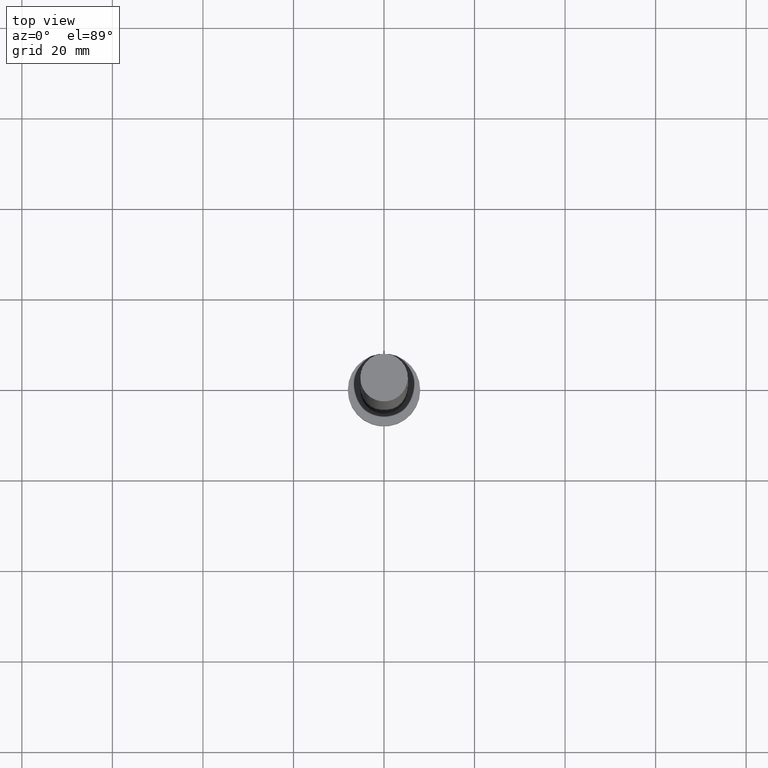
[diagram: clean part render]
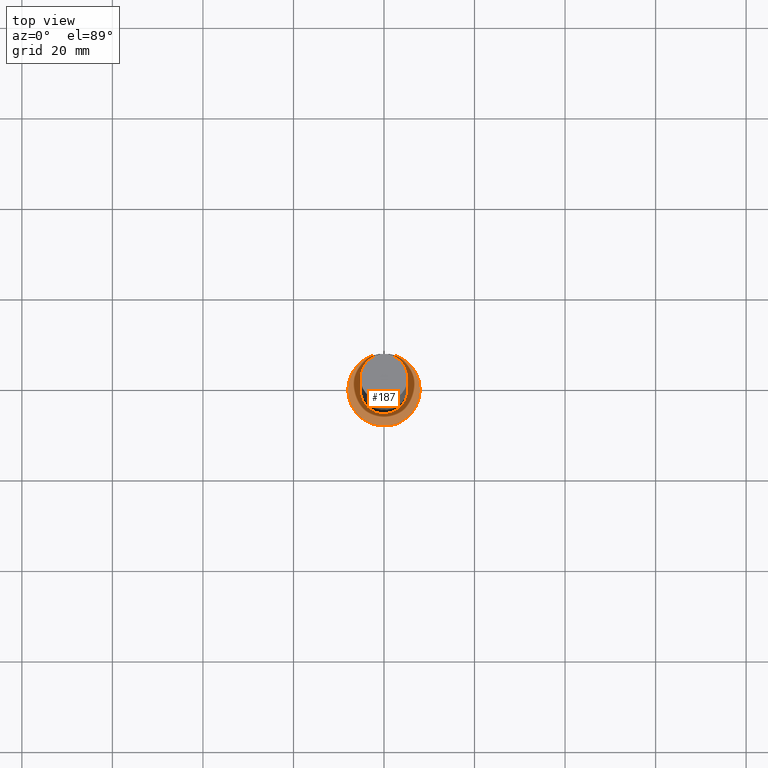
[diagram: same view with one face highlighted and labeled with its STEP entity id]
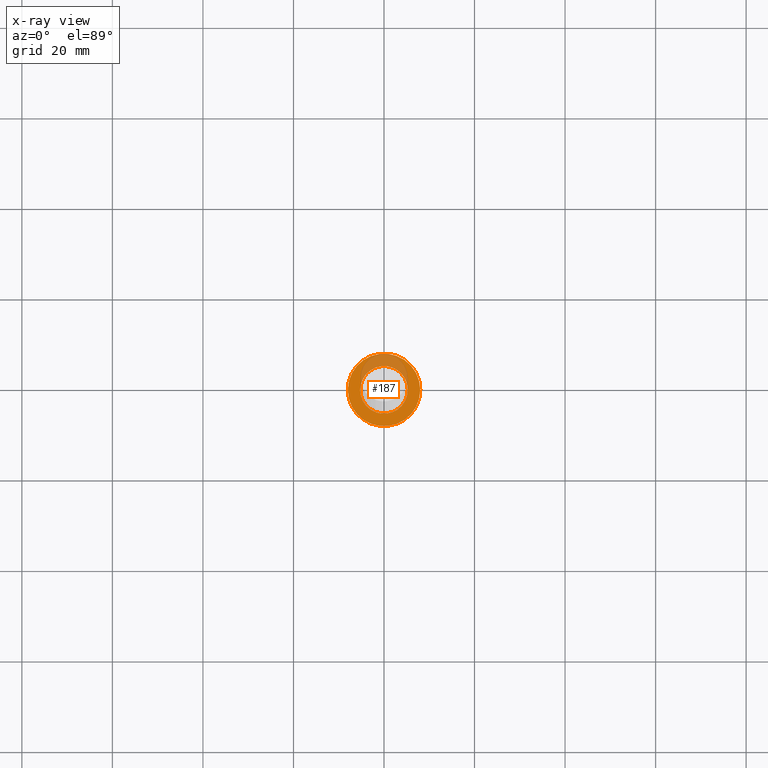
[diagram: x-ray of the same camera — body ghosted, the highlighted face saturated]
A machine part, top view. The second image highlights one B-rep face of the part: STEP entity #187.
The next image is the same camera in x-ray: the body ghosted, the highlighted face saturated — about 25% of this face is hidden behind the body in this view.
In plain terms, the highlighted planar face has unit normal (0, 0, 1).
Its self-contained STEP definition (entity closure, byte-faithful):
#4 = CIRCLE ( 'NONE', #49, 8.000000000000000000 ) ;
#10 = CARTESIAN_POINT ( 'NONE',  ( -8.000000000000000000, 0.000000000000000000, 5.000000000000000000 ) ) ;
#12 = FACE_BOUND ( 'NONE', #121, .T. ) ;
#15 = DIRECTION ( 'NONE',  ( 0.000000000000000000, 0.000000000000000000, 1.000000000000000000 ) ) ;
#25 = VERTEX_POINT ( 'NONE', #10 ) ;
#30 = EDGE_LOOP ( 'NONE', ( #190, #50 ) ) ;
#33 = DIRECTION ( 'NONE',  ( 1.000000000000000000, 0.000000000000000000, 0.000000000000000000 ) ) ;
#36 = AXIS2_PLACEMENT_3D ( 'NONE', #170, #250, #209 ) ;
#41 = CIRCLE ( 'NONE', #148, 5.250000000000000000 ) ;
#49 = AXIS2_PLACEMENT_3D ( 'NONE', #168, #113, #132 ) ;
#50 = ORIENTED_EDGE ( 'NONE', *, *, #246, .T. ) ;
#64 = VERTEX_POINT ( 'NONE', #163 ) ;
#70 = PLANE ( 'NONE',  #155 ) ;
#74 = DIRECTION ( 'NONE',  ( 0.000000000000000000, 0.000000000000000000, 1.000000000000000000 ) ) ;
#79 = CIRCLE ( 'NONE', #36, 5.250000000000000000 ) ;
#84 = CARTESIAN_POINT ( 'NONE',  ( 8.000000000000000000, 9.797174393178825657E-16, 5.000000000000000000 ) ) ;
#88 = ORIENTED_EDGE ( 'NONE', *, *, #232, .F. ) ;
#112 = DIRECTION ( 'NONE',  ( 0.000000000000000000, 0.000000000000000000, 1.000000000000000000 ) ) ;
#113 = DIRECTION ( 'NONE',  ( 0.000000000000000000, 0.000000000000000000, 1.000000000000000000 ) ) ;
#118 = AXIS2_PLACEMENT_3D ( 'NONE', #169, #74, #249 ) ;
#121 = EDGE_LOOP ( 'NONE', ( #88, #150 ) ) ;
#132 = DIRECTION ( 'NONE',  ( 1.000000000000000000, 0.000000000000000000, 0.000000000000000000 ) ) ;
#142 = FACE_OUTER_BOUND ( 'NONE', #30, .T. ) ;
#148 = AXIS2_PLACEMENT_3D ( 'NONE', #192, #15, #33 ) ;
#150 = ORIENTED_EDGE ( 'NONE', *, *, #225, .F. ) ;
#155 = AXIS2_PLACEMENT_3D ( 'NONE', #224, #112, #254 ) ;
#160 = VERTEX_POINT ( 'NONE', #166 ) ;
#161 = CIRCLE ( 'NONE', #118, 8.000000000000000000 ) ;
#163 = CARTESIAN_POINT ( 'NONE',  ( 5.250000000000000000, 6.429395695523604153E-16, 5.000000000000000000 ) ) ;
#165 = VERTEX_POINT ( 'NONE', #84 ) ;
#166 = CARTESIAN_POINT ( 'NONE',  ( -5.250000000000000000, 0.000000000000000000, 5.000000000000000000 ) ) ;
#168 = CARTESIAN_POINT ( 'NONE',  ( 0.000000000000000000, 0.000000000000000000, 5.000000000000000000 ) ) ;
#169 = CARTESIAN_POINT ( 'NONE',  ( 0.000000000000000000, 0.000000000000000000, 5.000000000000000000 ) ) ;
#170 = CARTESIAN_POINT ( 'NONE',  ( 0.000000000000000000, 0.000000000000000000, 5.000000000000000000 ) ) ;
#187 = ADVANCED_FACE ( 'NONE', ( #12, #142 ), #70, .T. ) ;
#190 = ORIENTED_EDGE ( 'NONE', *, *, #203, .T. ) ;
#192 = CARTESIAN_POINT ( 'NONE',  ( 0.000000000000000000, 0.000000000000000000, 5.000000000000000000 ) ) ;
#203 = EDGE_CURVE ( 'NONE', #25, #165, #4, .T. ) ;
#209 = DIRECTION ( 'NONE',  ( 1.000000000000000000, 0.000000000000000000, 0.000000000000000000 ) ) ;
#224 = CARTESIAN_POINT ( 'NONE',  ( 0.000000000000000000, 0.000000000000000000, 5.000000000000000000 ) ) ;
#225 = EDGE_CURVE ( 'NONE', #64, #160, #79, .T. ) ;
#232 = EDGE_CURVE ( 'NONE', #160, #64, #41, .T. ) ;
#246 = EDGE_CURVE ( 'NONE', #165, #25, #161, .T. ) ;
#249 = DIRECTION ( 'NONE',  ( 1.000000000000000000, 0.000000000000000000, 0.000000000000000000 ) ) ;
#250 = DIRECTION ( 'NONE',  ( 0.000000000000000000, 0.000000000000000000, 1.000000000000000000 ) ) ;
#254 = DIRECTION ( 'NONE',  ( 1.000000000000000000, 0.000000000000000000, -0.000000000000000000 ) ) ;